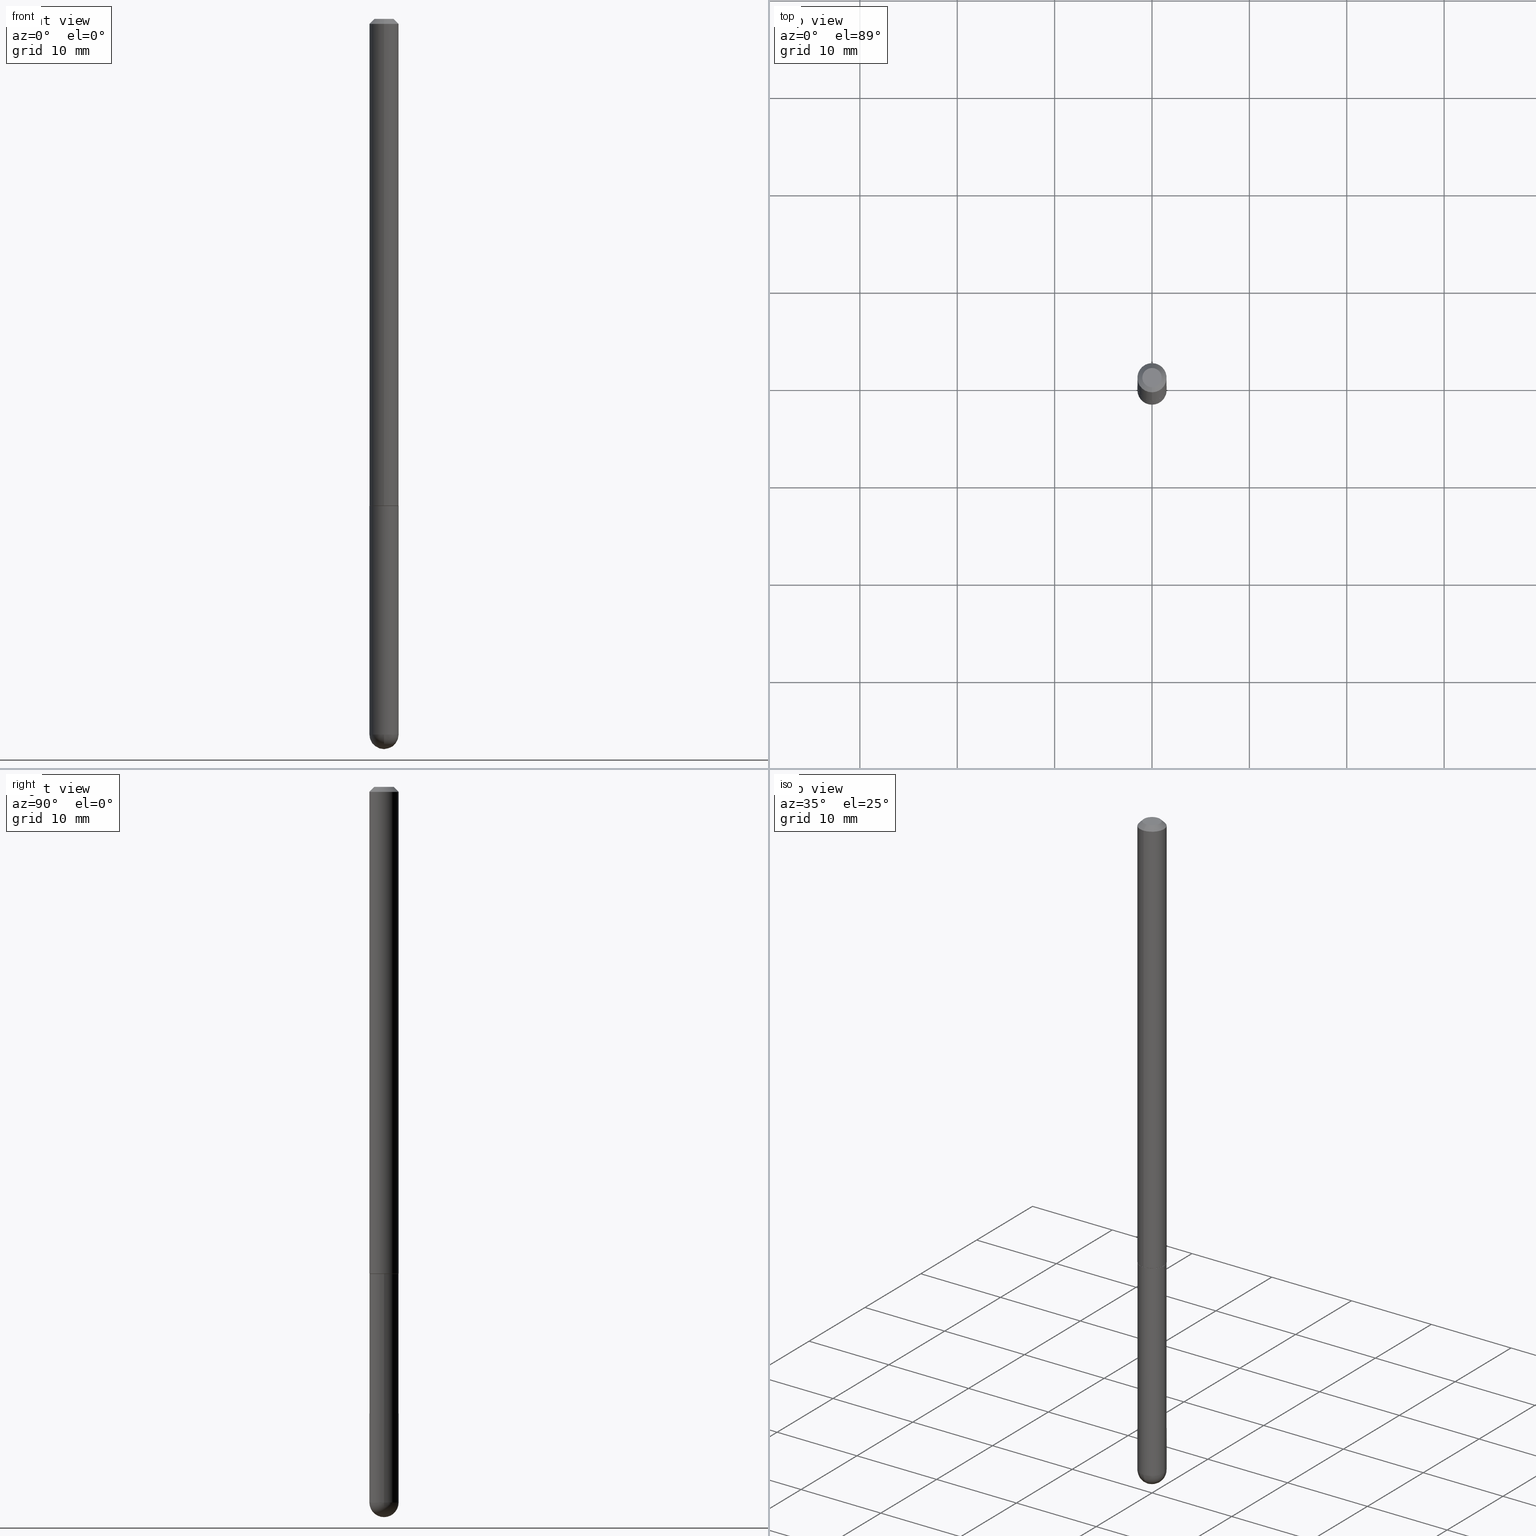
[diagram: canonical four-view strip — front | top / right | iso, engineering-drawing reading convention]
A machine part, canonical four-view strip (front | top / right | iso — engineering-drawing reading convention). The complete STEP part file that produces these views, byte-faithful:
ISO-10303-21;
HEADER;
FILE_DESCRIPTION (( 'STEP AP203' ),
    '1' );
FILE_NAME ('49557.STEP',
    '2024-04-10T12:23:21',
    ( '' ),
    ( '' ),
    'SwSTEP 2.0',
    'SolidWorks 2023',
    '' );
FILE_SCHEMA (( 'CONFIG_CONTROL_DESIGN' ));
ENDSEC;

DATA;
#1 = AXIS2_PLACEMENT_3D ( 'NONE', #47, #52, #175 ) ;
#2 = CARTESIAN_POINT ( 'NONE',  ( -0.05905000000000001914, 4.195754854663392958E-16, -2.904631170795522943E-30 ) ) ;
#3 = COORDINATED_UNIVERSAL_TIME_OFFSET ( 5, 0, .BEHIND. ) ;
#4 = DIRECTION ( 'NONE',  ( 1.000000000000000000, -6.982962677686265922E-15, 4.883557194083112340E-29 ) ) ;
#5 = CALENDAR_DATE ( 2024, 10, 4 ) ;
#6 = VERTEX_POINT ( 'NONE', #395 ) ;
#7 = DIRECTION ( 'NONE',  ( -6.982962677686265922E-15, -1.000000000000000000, 3.481260124123203259E-15 ) ) ;
#8 = ADVANCED_FACE ( 'NONE', ( #205 ), #264, .T. ) ;
#9 = EDGE_CURVE ( 'NONE', #341, #406, #200, .T. ) ;
#10 = DIRECTION ( 'NONE',  ( 1.000000000000000000, -6.982962677686266711E-15, 4.876176775795935793E-29 ) ) ;
#11 = AXIS2_PLACEMENT_3D ( 'NONE', #277, #128, #358 ) ;
#12 = VECTOR ( 'NONE', #71, 39.37007874015748143 ) ;
#13 = DIRECTION ( 'NONE',  ( -6.982962677686265922E-15, -1.000000000000000000, 3.481260124123203259E-15 ) ) ;
#14 = DIRECTION ( 'NONE',  ( -2.445468806185136597E-29, 3.491481338843145583E-15, 1.000000000000000000 ) ) ;
#15 = ORIENTED_EDGE ( 'NONE', *, *, #44, .F. ) ;
#16 = ORIENTED_EDGE ( 'NONE', *, *, #69, .F. ) ;
#17 = VECTOR ( 'NONE', #145, 39.37007874015748143 ) ;
#18 = DIRECTION ( 'NONE',  ( 6.982962677686265922E-15, 1.000000000000000000, -3.469747663417776213E-15 ) ) ;
#19 = PRODUCT_DEFINITION_SHAPE ( 'NONE', 'NONE',  #273 ) ;
#20 = DIRECTION ( 'NONE',  ( -2.452606242276133797E-29, 3.481260124123203654E-15, 1.000000000000000000 ) ) ;
#21 = EDGE_CURVE ( 'NONE', #76, #172, #209, .T. ) ;
#22 = DIRECTION ( 'NONE',  ( -2.452606242276133797E-29, 3.481260124123203654E-15, 1.000000000000000000 ) ) ;
#23 = DIRECTION ( 'NONE',  ( -6.982962677686265922E-15, -1.000000000000000000, 4.706025828879006993E-15 ) ) ;
#24 = ORIENTED_EDGE ( 'NONE', *, *, #261, .T. ) ;
#25 = CARTESIAN_POINT ( 'NONE',  ( -4.051124067684085231E-16, -0.05905000000000008159, -0.01999999999999986511 ) ) ;
#26 = AXIS2_PLACEMENT_3D ( 'NONE', #280, #121, #72 ) ;
#27 = LINE ( 'NONE', #374, #154 ) ;
#28 = ORIENTED_EDGE ( 'NONE', *, *, #402, .T. ) ;
#29 = DIRECTION ( 'NONE',  ( -2.452606242276133797E-29, 3.481260124123203654E-15, 1.000000000000000000 ) ) ;
#30 = VERTEX_POINT ( 'NONE', #35 ) ;
#31 = VERTEX_POINT ( 'NONE', #281 ) ;
#32 = APPROVAL_STATUS ( 'not_yet_approved' ) ;
#33 = APPROVAL_ROLE ( '' ) ;
#34 = CIRCLE ( 'NONE', #327, 0.03905000000000070914 ) ;
#35 = CARTESIAN_POINT ( 'NONE',  ( -0.05905000000000001914, -8.068652084428701697E-15, -1.968499999999999694 ) ) ;
#36 = EDGE_CURVE ( 'NONE', #172, #76, #364, .T. ) ;
#37 = ADVANCED_FACE ( 'NONE', ( #92 ), #215, .T. ) ;
#38 = ORIENTED_EDGE ( 'NONE', *, *, #9, .T. ) ;
#39 = LOCAL_TIME ( 8, 23, 21.00000000000000000, #192 ) ;
#40 = VECTOR ( 'NONE', #97, 39.37007874015748143 ) ;
#41 = CYLINDRICAL_SURFACE ( 'NONE', #237, 0.05905000000000001914 ) ;
#42 = DIRECTION ( 'NONE',  ( -6.982962677686265922E-15, -1.000000000000000000, 4.706025828879006993E-15 ) ) ;
#43 = CIRCLE ( 'NONE', #1, 0.05905000000000001914 ) ;
#44 = EDGE_CURVE ( 'NONE', #6, #235, #220, .T. ) ;
#45 = ORIENTED_EDGE ( 'NONE', *, *, #222, .F. ) ;
#46 = DESIGN_CONTEXT ( 'detailed design', #375, 'design' ) ;
#47 = CARTESIAN_POINT ( 'NONE',  ( 7.076575357898237682E-29, -1.010347412427735067E-14, -2.893749999999999822 ) ) ;
#48 = LENGTH_MEASURE_WITH_UNIT ( LENGTH_MEASURE( 0.02539999999999999897 ), #89 );
#49 = ORIENTED_EDGE ( 'NONE', *, *, #9, .F. ) ;
#50 = AXIS2_PLACEMENT_3D ( 'NONE', #168, #115, #96 ) ;
#51 = PERSON ( 'UNSPECIFIED', 'UNSPECIFIED', 'UNSPECIFIED', ('UNSPECIFIED'), ('UNSPECIFIED'), ('UNSPECIFIED') ) ;
#52 = DIRECTION ( 'NONE',  ( -2.445468806185136597E-29, 3.491481338843145583E-15, 1.000000000000000000 ) ) ;
#53 = ORIENTED_EDGE ( 'NONE', *, *, #396, .F. ) ;
#54 = CYLINDRICAL_SURFACE ( 'NONE', #352, 0.05905000000000010935 ) ;
#55 = ORIENTED_EDGE ( 'NONE', *, *, #362, .F. ) ;
#56 = VERTEX_POINT ( 'NONE', #151 ) ;
#57 = CC_DESIGN_PERSON_AND_ORGANIZATION_ASSIGNMENT ( #329, #120, ( #273 ) ) ;
#58 = DIRECTION ( 'NONE',  ( -1.000000000000000000, 6.982962677686265922E-15, -4.876176775795935793E-29 ) ) ;
#59 = AXIS2_PLACEMENT_3D ( 'NONE', #157, #148, #293 ) ;
#60 = AXIS2_PLACEMENT_3D ( 'NONE', #90, #213, #141 ) ;
#61 = CARTESIAN_POINT ( 'NONE',  ( 0.000000000000000000, 0.000000000000000000, 0.000000000000000000 ) ) ;
#62 = CARTESIAN_POINT ( 'NONE',  ( -4.123439461173747722E-16, -0.05905000000000010935, 2.055684103294755676E-16 ) ) ;
#63 = ADVANCED_FACE ( 'NONE', ( #284 ), #160, .T. ) ;
#64 = DIRECTION ( 'NONE',  ( -6.982962677686265922E-15, -1.000000000000000000, 4.706025828879006993E-15 ) ) ;
#65 = DIRECTION ( 'NONE',  ( -2.445468806185136597E-29, 3.491481338843145583E-15, 1.000000000000000000 ) ) ;
#66 = CIRCLE ( 'NONE', #59, 0.05905000000000001914 ) ;
#67 = EDGE_LOOP ( 'NONE', ( #208, #181, #270, #79 ) ) ;
#68 = AXIS2_PLACEMENT_3D ( 'NONE', #166, #367, #303 ) ;
#69 = EDGE_CURVE ( 'NONE', #251, #206, #43, .T. ) ;
#70 = ADVANCED_FACE ( 'NONE', ( #296 ), #390, .T. ) ;
#71 = DIRECTION ( 'NONE',  ( 4.937700262164540154E-15, 0.7071067811865440200, -0.7071067811865511255 ) ) ;
#72 = DIRECTION ( 'NONE',  ( 6.982962677686265922E-15, 1.000000000000000000, 0.000000000000000000 ) ) ;
#73 = EDGE_CURVE ( 'NONE', #106, #201, #258, .T. ) ;
#74 = ORIENTED_EDGE ( 'NONE', *, *, #127, .T. ) ;
#75 = DIRECTION ( 'NONE',  ( 1.000000000000000000, -6.982962677686270655E-15, 0.000000000000000000 ) ) ;
#76 = VERTEX_POINT ( 'NONE', #123 ) ;
#77 = FACE_OUTER_BOUND ( 'NONE', #140, .T. ) ;
#78 = MECHANICAL_CONTEXT ( 'NONE', #386, 'mechanical' ) ;
#79 = ORIENTED_EDGE ( 'NONE', *, *, #376, .F. ) ;
#80 = ORIENTED_EDGE ( 'NONE', *, *, #333, .T. ) ;
#81 = CARTESIAN_POINT ( 'NONE',  ( 4.195754854663398874E-16, 0.05905000000000010935, -2.055684103294755676E-16 ) ) ;
#82 = CONICAL_SURFACE ( 'NONE', #330, 0.05804999999999999744, 0.7853981633975165577 ) ;
#83 =( CONVERSION_BASED_UNIT ( 'INCH', #48 ) LENGTH_UNIT ( ) NAMED_UNIT ( #147 ) );
#84 = ORIENTED_EDGE ( 'NONE', *, *, #262, .F. ) ;
#85 = CARTESIAN_POINT ( 'NONE',  ( 4.123439461174440441E-16, 0.05904999999998979815, -2.893749999999999822 ) ) ;
#86 = DIRECTION ( 'NONE',  ( -2.445468806185136597E-29, 3.491481338843145583E-15, 1.000000000000000000 ) ) ;
#87 = CARTESIAN_POINT ( 'NONE',  ( 4.124700581087863588E-16, 0.05804999999999314181, -1.968500000000000139 ) ) ;
#88 = CARTESIAN_POINT ( 'NONE',  ( -4.051124067684085231E-16, -0.05905000000000008159, -0.01999999999999986511 ) ) ;
#89 =( LENGTH_UNIT ( ) NAMED_UNIT ( * ) SI_UNIT ( $, .METRE. ) );
#90 = CARTESIAN_POINT ( 'NONE',  ( 4.827955387920569283E-29, -6.852860554336525173E-15, -1.968499999999999694 ) ) ;
#91 = APPROVAL_ROLE ( '' ) ;
#92 = FACE_OUTER_BOUND ( 'NONE', #67, .T. ) ;
#93 = ORIENTED_EDGE ( 'NONE', *, *, #402, .F. ) ;
#94 = SHAPE_DEFINITION_REPRESENTATION ( #19, #332 ) ;
#95 = CARTESIAN_POINT ( 'NONE',  ( 6.745455579984352556E-29, -1.057765649241740097E-14, -2.893749999999999822 ) ) ;
#96 = DIRECTION ( 'NONE',  ( 1.000000000000000000, -6.982962677686266711E-15, 4.876176775795935793E-29 ) ) ;
#97 = DIRECTION ( 'NONE',  ( -2.445468806185136877E-29, 3.491481338843145188E-15, 1.000000000000000000 ) ) ;
#98 = PERSON_AND_ORGANIZATION_ROLE ( 'classification_officer' ) ;
#99 = ADVANCED_FACE ( 'NONE', ( #310 ), #109, .T. ) ;
#100 = EDGE_LOOP ( 'NONE', ( #348, #74, #314, #112 ) ) ;
#101 = DATE_AND_TIME ( #385, #139 ) ;
#102 = AXIS2_PLACEMENT_3D ( 'NONE', #95, #4, #292 ) ;
#103 = VECTOR ( 'NONE', #347, 39.37007874015748143 ) ;
#104 = ORIENTED_EDGE ( 'NONE', *, *, #69, .T. ) ;
#105 = AXIS2_PLACEMENT_3D ( 'NONE', #350, #240, #58 ) ;
#106 = VERTEX_POINT ( 'NONE', #272 ) ;
#107 = EDGE_LOOP ( 'NONE', ( #365, #38, #342, #15 ) ) ;
#108 = CARTESIAN_POINT ( 'NONE',  ( 3.425143193405141365E-16, 0.03905000000000070914, -8.321098821681942048E-16 ) ) ;
#109 = SPHERICAL_SURFACE ( 'NONE', #184, 0.05905000000000025506 ) ;
#110 = CARTESIAN_POINT ( 'NONE',  ( 4.905212484552284025E-31, -6.962520248246431022E-17, -0.02000000000000006981 ) ) ;
#111 = VECTOR ( 'NONE', #315, 39.37007874015748854 ) ;
#112 = ORIENTED_EDGE ( 'NONE', *, *, #261, .F. ) ;
#113 = DIRECTION ( 'NONE',  ( -2.445468806185136597E-29, 3.491481338843145583E-15, 1.000000000000000000 ) ) ;
#114 = ORIENTED_EDGE ( 'NONE', *, *, #396, .T. ) ;
#115 = DIRECTION ( 'NONE',  ( -2.445468806185136597E-29, 3.491481338843145583E-15, 1.000000000000000000 ) ) ;
#116 = CARTESIAN_POINT ( 'NONE',  ( 4.905212484552284025E-31, -6.962520248246431022E-17, -0.02000000000000006981 ) ) ;
#117 = APPROVAL_DATE_TIME ( #152, #295 ) ;
#118 = CALENDAR_DATE ( 2024, 10, 4 ) ;
#119 = DIRECTION ( 'NONE',  ( 2.452606242276133797E-29, -3.481260124123203654E-15, -1.000000000000000000 ) ) ;
#120 = PERSON_AND_ORGANIZATION_ROLE ( 'creator' ) ;
#121 = DIRECTION ( 'NONE',  ( -1.000000000000000000, 6.982962677686265922E-15, -4.883557194083112340E-29 ) ) ;
#122 = CARTESIAN_POINT ( 'NONE',  ( -4.123439461173271448E-16, -0.05905000000000704824, -1.967499999999999361 ) ) ;
#123 = CARTESIAN_POINT ( 'NONE',  ( 4.160227717875875531E-16, 0.05804999999999314181, -1.968500000000000139 ) ) ;
#124 = CARTESIAN_POINT ( 'NONE',  ( -4.195754854662709114E-16, -0.05905000000001047605, -2.893749999999999822 ) ) ;
#125 = EDGE_CURVE ( 'NONE', #31, #305, #276, .T. ) ;
#126 = DIRECTION ( 'NONE',  ( 1.000000000000000000, 0.000000000000000000, 0.000000000000000000 ) ) ;
#127 = EDGE_CURVE ( 'NONE', #106, #235, #198, .T. ) ;
#128 = DIRECTION ( 'NONE',  ( -1.000000000000000000, 7.105427357601001070E-15, -4.926315508542082329E-29 ) ) ;
#129 = ORIENTED_EDGE ( 'NONE', *, *, #249, .F. ) ;
#130 = APPLICATION_PROTOCOL_DEFINITION ( 'international standard', 'config_control_design', 1994, #386 ) ;
#131 = AXIS2_PLACEMENT_3D ( 'NONE', #311, #86, #407 ) ;
#132 = EDGE_LOOP ( 'NONE', ( #309, #137, #84, #304 ) ) ;
#133 = CIRCLE ( 'NONE', #380, 0.05905000000000001914 ) ;
#134 = PERSON_AND_ORGANIZATION ( #51, #199 ) ;
#135 = CARTESIAN_POINT ( 'NONE',  ( 4.825502781678292621E-29, -6.849379294212400691E-15, -1.967499999999999805 ) ) ;
#136 = CC_DESIGN_PERSON_AND_ORGANIZATION_ASSIGNMENT ( #243, #186, ( #343 ) ) ;
#137 = ORIENTED_EDGE ( 'NONE', *, *, #249, .T. ) ;
#138 = DIRECTION ( 'NONE',  ( 1.000000000000000000, -6.982962677686270655E-15, 0.000000000000000000 ) ) ;
#139 = LOCAL_TIME ( 8, 23, 21.00000000000000000, #3 ) ;
#140 = EDGE_LOOP ( 'NONE', ( #233, #149 ) ) ;
#141 = DIRECTION ( 'NONE',  ( -6.982962677686265922E-15, -1.000000000000000000, 3.481260124123204048E-15 ) ) ;
#142 = AXIS2_PLACEMENT_3D ( 'NONE', #328, #226, #389 ) ;
#143 = ADVANCED_FACE ( 'NONE', ( #253 ), #377, .F. ) ;
#144 = PLANE ( 'NONE',  #105 ) ;
#145 = DIRECTION ( 'NONE',  ( 5.024295867788404755E-15, 0.7071067811865981989, 0.7071067811864968355 ) ) ;
#146 = CC_DESIGN_PERSON_AND_ORGANIZATION_ASSIGNMENT ( #134, #259, ( #321 ) ) ;
#147 = DIMENSIONAL_EXPONENTS ( 1.000000000000000000, 0.000000000000000000, 0.000000000000000000, 0.000000000000000000, 0.000000000000000000, 0.000000000000000000, 0.000000000000000000 ) ;
#148 = DIRECTION ( 'NONE',  ( -2.445468806185136597E-29, 3.491481338843145583E-15, 1.000000000000000000 ) ) ;
#149 = ORIENTED_EDGE ( 'NONE', *, *, #73, .T. ) ;
#150 = LINE ( 'NONE', #87, #17 ) ;
#151 = CARTESIAN_POINT ( 'NONE',  ( 0.05905000000000001914, -7.285324961630105839E-15, -1.968499999999999694 ) ) ;
#152 = DATE_AND_TIME ( #219, #335 ) ;
#153 = SECURITY_CLASSIFICATION ( '', '', #255 ) ;
#154 = VECTOR ( 'NONE', #282, 39.37007874015748143 ) ;
#155 = ORIENTED_EDGE ( 'NONE', *, *, #254, .F. ) ;
#156 = FACE_OUTER_BOUND ( 'NONE', #410, .T. ) ;
#157 = CARTESIAN_POINT ( 'NONE',  ( 7.076575357898237682E-29, -1.010347412427735067E-14, -2.893749999999999822 ) ) ;
#158 = DATE_TIME_ROLE ( 'creation_date' ) ;
#159 = CIRCLE ( 'NONE', #131, 0.05905000000000001914 ) ;
#160 = CONICAL_SURFACE ( 'NONE', #359, 0.05905000000000001914, 0.7853981633974467247 ) ;
#161 = CARTESIAN_POINT ( 'NONE',  ( 0.000000000000000000, 0.000000000000000000, 0.000000000000000000 ) ) ;
#162 = DIRECTION ( 'NONE',  ( 0.000000000000000000, 0.000000000000000000, 1.000000000000000000 ) ) ;
#163 = ADVANCED_FACE ( 'NONE', ( #271 ), #144, .F. ) ;
#164 = LOCAL_TIME ( 8, 23, 21.00000000000000000, #357 ) ;
#165 = AXIS2_PLACEMENT_3D ( 'NONE', #242, #288, #64 ) ;
#166 = CARTESIAN_POINT ( 'NONE',  ( 2.726846925636536486E-16, 0.03905000000000070914, -4.840265450076038589E-16 ) ) ;
#167 = EDGE_LOOP ( 'NONE', ( #178, #80 ) ) ;
#168 = CARTESIAN_POINT ( 'NONE',  ( 0.000000000000000000, 0.000000000000000000, 0.000000000000000000 ) ) ;
#169 = EDGE_LOOP ( 'NONE', ( #241, #265, #191, #93 ) ) ;
#170 = AXIS2_PLACEMENT_3D ( 'NONE', #269, #162, #126 ) ;
#171 = EDGE_CURVE ( 'NONE', #172, #406, #345, .T. ) ;
#172 = VERTEX_POINT ( 'NONE', #317 ) ;
#173 = AXIS2_PLACEMENT_3D ( 'NONE', #116, #245, #187 ) ;
#174 = APPROVAL_STATUS ( 'not_yet_approved' ) ;
#175 = DIRECTION ( 'NONE',  ( 1.000000000000000000, -6.982962677686270655E-15, 0.000000000000000000 ) ) ;
#176 = CARTESIAN_POINT ( 'NONE',  ( 0.000000000000000000, 0.000000000000000000, 0.000000000000000000 ) ) ;
#177 = DIRECTION ( 'NONE',  ( -2.452606242276134078E-29, 3.481260124123204048E-15, 1.000000000000000000 ) ) ;
#178 = ORIENTED_EDGE ( 'NONE', *, *, #254, .T. ) ;
#179 = CARTESIAN_POINT ( 'NONE',  ( 4.827955387920569283E-29, -6.852860554336525173E-15, -1.968499999999999694 ) ) ;
#180 = DIRECTION ( 'NONE',  ( -1.000000000000000000, 6.982962677686265922E-15, -4.883557194083112340E-29 ) ) ;
#181 = ORIENTED_EDGE ( 'NONE', *, *, #387, .T. ) ;
#182 = EDGE_CURVE ( 'NONE', #356, #305, #196, .T. ) ;
#183 = CARTESIAN_POINT ( 'NONE',  ( -4.053609834396394049E-16, -0.05805000000000685306, -1.968499999999999472 ) ) ;
#184 = AXIS2_PLACEMENT_3D ( 'NONE', #238, #180, #313 ) ;
#185 = DIRECTION ( 'NONE',  ( -2.452606242276133797E-29, 3.481260124123203654E-15, 1.000000000000000000 ) ) ;
#186 = PERSON_AND_ORGANIZATION_ROLE ( 'design_supplier' ) ;
#187 = DIRECTION ( 'NONE',  ( -6.982962677686265922E-15, -1.000000000000000000, 3.469747663417776213E-15 ) ) ;
#188 = PRODUCT_RELATED_PRODUCT_CATEGORY ( 'detail', '', ( #321 ) ) ;
#189 = CALENDAR_DATE ( 2024, 10, 4 ) ;
#190 = AXIS2_PLACEMENT_3D ( 'NONE', #236, #373, #18 ) ;
#191 = ORIENTED_EDGE ( 'NONE', *, *, #182, .F. ) ;
#192 = COORDINATED_UNIVERSAL_TIME_OFFSET ( 5, 0, .BEHIND. ) ;
#193 = EDGE_CURVE ( 'NONE', #251, #56, #27, .T. ) ;
#194 = ADVANCED_FACE ( 'NONE', ( #408 ), #54, .T. ) ;
#195 = APPROVAL_PERSON_ORGANIZATION ( #363, #300, #91 ) ;
#196 = CIRCLE ( 'NONE', #217, 0.05905000000000001914 ) ;
#197 = DIRECTION ( 'NONE',  ( -2.452606242276133797E-29, 3.481260124123203654E-15, 1.000000000000000000 ) ) ;
#198 = LINE ( 'NONE', #88, #111 ) ;
#199 = ORGANIZATION ( 'UNSPECIFIED', 'UNSPECIFIED', '' ) ;
#200 = CIRCLE ( 'NONE', #372, 0.05905000000000020649 ) ;
#201 = VERTEX_POINT ( 'NONE', #108 ) ;
#202 = FACE_OUTER_BOUND ( 'NONE', #326, .T. ) ;
#203 = ORIENTED_EDGE ( 'NONE', *, *, #182, .T. ) ;
#204 = CARTESIAN_POINT ( 'NONE',  ( 4.813905344975440714E-29, -6.872981015512730918E-15, -1.968499999999999694 ) ) ;
#205 = FACE_OUTER_BOUND ( 'NONE', #100, .T. ) ;
#206 = VERTEX_POINT ( 'NONE', #85 ) ;
#207 = AXIS2_PLACEMENT_3D ( 'NONE', #204, #14, #75 ) ;
#208 = ORIENTED_EDGE ( 'NONE', *, *, #262, .T. ) ;
#209 = CIRCLE ( 'NONE', #403, 0.05804999999999999744 ) ;
#210 = ADVANCED_FACE ( 'NONE', ( #212 ), #82, .T. ) ;
#211 = ORIENTED_EDGE ( 'NONE', *, *, #171, .T. ) ;
#212 = FACE_OUTER_BOUND ( 'NONE', #346, .T. ) ;
#213 = DIRECTION ( 'NONE',  ( -2.452606242276133237E-29, 3.481260124123204048E-15, 1.000000000000000000 ) ) ;
#214 = CC_DESIGN_PERSON_AND_ORGANIZATION_ASSIGNMENT ( #286, #98, ( #153 ) ) ;
#215 = CYLINDRICAL_SURFACE ( 'NONE', #394, 0.05905000000000010935 ) ;
#216 = EDGE_LOOP ( 'NONE', ( #325, #239, #16, #53 ) ) ;
#217 = AXIS2_PLACEMENT_3D ( 'NONE', #405, #113, #138 ) ;
#218 = CC_DESIGN_DATE_AND_TIME_ASSIGNMENT ( #248, #158, ( #273 ) ) ;
#219 = CALENDAR_DATE ( 2024, 10, 4 ) ;
#220 = CIRCLE ( 'NONE', #173, 0.05905000000000001914 ) ;
#221 = ORIENTED_EDGE ( 'NONE', *, *, #127, .F. ) ;
#222 = EDGE_CURVE ( 'NONE', #356, #30, #275, .T. ) ;
#223 = APPROVAL_DATE_TIME ( #101, #257 ) ;
#224 = CARTESIAN_POINT ( 'NONE',  ( 4.123439461173745750E-16, 0.05904999999999994975, -0.02000000000000027450 ) ) ;
#225 = VECTOR ( 'NONE', #369, 39.37007874015748143 ) ;
#226 = DIRECTION ( 'NONE',  ( -2.452606242276133797E-29, 3.481260124123203654E-15, 1.000000000000000000 ) ) ;
#227 = CARTESIAN_POINT ( 'NONE',  ( -0.05905000000000001914, -8.068652084428701697E-15, -2.893749999999999822 ) ) ;
#228 = CC_DESIGN_APPROVAL ( #257, ( #153 ) ) ;
#229 = EDGE_CURVE ( 'NONE', #235, #6, #133, .T. ) ;
#230 = ORIENTED_EDGE ( 'NONE', *, *, #21, .F. ) ;
#231 =( NAMED_UNIT ( * ) PLANE_ANGLE_UNIT ( ) SI_UNIT ( $, .RADIAN. ) );
#232 = CARTESIAN_POINT ( 'NONE',  ( 4.827955387920569283E-29, -6.852860554336525173E-15, -1.968499999999999694 ) ) ;
#233 = ORIENTED_EDGE ( 'NONE', *, *, #362, .T. ) ;
#234 = PLANE ( 'NONE',  #68 ) ;
#235 = VERTEX_POINT ( 'NONE', #25 ) ;
#236 = CARTESIAN_POINT ( 'NONE',  ( 4.905212484552284025E-31, -6.962520248246431022E-17, -0.02000000000000006981 ) ) ;
#237 = AXIS2_PLACEMENT_3D ( 'NONE', #161, #299, #10 ) ;
#238 = CARTESIAN_POINT ( 'NONE',  ( 6.745455579984352556E-29, -1.057765649241740097E-14, -2.893749999999999822 ) ) ;
#239 = ORIENTED_EDGE ( 'NONE', *, *, #351, .T. ) ;
#240 = DIRECTION ( 'NONE',  ( 2.438088387897960049E-29, -3.491481338843145188E-15, -1.000000000000000000 ) ) ;
#241 = ORIENTED_EDGE ( 'NONE', *, *, #351, .F. ) ;
#242 = CARTESIAN_POINT ( 'NONE',  ( 4.827955387920569283E-29, -6.852860554336525173E-15, -1.968499999999999694 ) ) ;
#243 = PERSON_AND_ORGANIZATION ( #51, #199 ) ;
#244 = CARTESIAN_POINT ( 'NONE',  ( 4.195754854663646379E-16, 0.05904999999999335780, -1.967500000000000027 ) ) ;
#245 = DIRECTION ( 'NONE',  ( -2.452606242276133797E-29, 3.481260124123203654E-15, 1.000000000000000000 ) ) ;
#246 = PERSON_AND_ORGANIZATION ( #51, #199 ) ;
#247 = CIRCLE ( 'NONE', #142, 0.05905000000000020649 ) ;
#248 = DATE_AND_TIME ( #118, #39 ) ;
#249 = EDGE_CURVE ( 'NONE', #76, #341, #150, .T. ) ;
#250 = COORDINATED_UNIVERSAL_TIME_OFFSET ( 5, 0, .BEHIND. ) ;
#251 = VERTEX_POINT ( 'NONE', #354 ) ;
#252 = DIRECTION ( 'NONE',  ( -6.982962677686265922E-15, -1.000000000000000000, 3.481260124123203654E-15 ) ) ;
#253 = FACE_OUTER_BOUND ( 'NONE', #404, .T. ) ;
#254 = EDGE_CURVE ( 'NONE', #56, #30, #337, .T. ) ;
#255 = SECURITY_CLASSIFICATION_LEVEL ( 'unclassified' ) ;
#256 =( GEOMETRIC_REPRESENTATION_CONTEXT ( 3 ) GLOBAL_UNCERTAINTY_ASSIGNED_CONTEXT ( ( #370 ) ) GLOBAL_UNIT_ASSIGNED_CONTEXT ( ( #83, #231, #340 ) ) REPRESENTATION_CONTEXT ( 'NONE', 'WORKASPACE' ) );
#257 = APPROVAL ( #32, 'UNSPECIFIED' ) ;
#258 = CIRCLE ( 'NONE', #285, 0.03905000000000070914 ) ;
#259 = PERSON_AND_ORGANIZATION_ROLE ( 'design_owner' ) ;
#260 = LINE ( 'NONE', #62, #225 ) ;
#261 = EDGE_CURVE ( 'NONE', #201, #6, #279, .T. ) ;
#262 = EDGE_CURVE ( 'NONE', #406, #341, #247, .T. ) ;
#263 = APPROVAL_PERSON_ORGANIZATION ( #287, #295, #33 ) ;
#264 = CONICAL_SURFACE ( 'NONE', #190, 0.05905000000000001914, 0.7853981633974467247 ) ;
#265 = ORIENTED_EDGE ( 'NONE', *, *, #125, .T. ) ;
#266 = ORIENTED_EDGE ( 'NONE', *, *, #36, .F. ) ;
#267 = DIRECTION ( 'NONE',  ( -2.452606242276133797E-29, 3.481260124123203654E-15, 1.000000000000000000 ) ) ;
#268 = MANIFOLD_SOLID_BREP ( 'Body-Move/Copy2[1]', #298 ) ;
#269 = CARTESIAN_POINT ( 'NONE',  ( 0.000000000000000000, 0.000000000000000000, 0.000000000000000000 ) ) ;
#270 = ORIENTED_EDGE ( 'NONE', *, *, #229, .F. ) ;
#271 = FACE_OUTER_BOUND ( 'NONE', #167, .T. ) ;
#272 = CARTESIAN_POINT ( 'NONE',  ( -3.365074267906958048E-16, -0.03905000000000070914, -5.602234664741670801E-16 ) ) ;
#273 = PRODUCT_DEFINITION ( 'UNKNOWN', '', #343, #46 ) ;
#274 = DIRECTION ( 'NONE',  ( -6.982962677686265922E-15, -1.000000000000000000, 4.706025828879006993E-15 ) ) ;
#275 = LINE ( 'NONE', #2, #40 ) ;
#276 = CIRCLE ( 'NONE', #11, 0.05905000000000025506 ) ;
#277 = CARTESIAN_POINT ( 'NONE',  ( 6.745455579984352556E-29, -1.057765649241740097E-14, -2.893749999999999822 ) ) ;
#278 = ORIENTED_EDGE ( 'NONE', *, *, #222, .T. ) ;
#279 = LINE ( 'NONE', #224, #12 ) ;
#280 = CARTESIAN_POINT ( 'NONE',  ( 6.745455579984352556E-29, -1.057765649241740097E-14, -2.893749999999999822 ) ) ;
#281 = CARTESIAN_POINT ( 'NONE',  ( 6.892385391458386628E-29, -1.078021269580160693E-14, -2.952799999999999869 ) ) ;
#282 = DIRECTION ( 'NONE',  ( -2.445468806185136877E-29, 3.491481338843145188E-15, 1.000000000000000000 ) ) ;
#283 = CC_DESIGN_APPROVAL ( #300, ( #273 ) ) ;
#284 = FACE_OUTER_BOUND ( 'NONE', #366, .T. ) ;
#285 = AXIS2_PLACEMENT_3D ( 'NONE', #388, #197, #7 ) ;
#286 = PERSON_AND_ORGANIZATION ( #51, #199 ) ;
#287 = PERSON_AND_ORGANIZATION ( #51, #199 ) ;
#288 = DIRECTION ( 'NONE',  ( -2.452606242276133797E-29, 3.481260124123203654E-15, 1.000000000000000000 ) ) ;
#289 = APPROVAL_DATE_TIME ( #297, #300 ) ;
#290 = ADVANCED_FACE ( 'NONE', ( #156 ), #41, .T. ) ;
#291 = MANIFOLD_SOLID_BREP ( 'Body-Move/Copy2[2]', #307 ) ;
#292 = DIRECTION ( 'NONE',  ( 6.982962677686266711E-15, 1.000000000000000000, 0.000000000000000000 ) ) ;
#293 = DIRECTION ( 'NONE',  ( 1.000000000000000000, -6.982962677686270655E-15, 0.000000000000000000 ) ) ;
#294 = DATE_AND_TIME ( #5, #401 ) ;
#295 = APPROVAL ( #382, 'UNSPECIFIED' ) ;
#296 = FACE_OUTER_BOUND ( 'NONE', #216, .T. ) ;
#297 = DATE_AND_TIME ( #189, #164 ) ;
#298 = CLOSED_SHELL ( 'NONE', ( #290, #99, #70, #163, #336 ) ) ;
#299 = DIRECTION ( 'NONE',  ( -2.445468806185136597E-29, 3.491481338843145583E-15, 1.000000000000000000 ) ) ;
#300 = APPROVAL ( #174, 'UNSPECIFIED' ) ;
#301 = CONICAL_SURFACE ( 'NONE', #355, 0.05804999999999999744, 0.7853981633975165577 ) ;
#302 = DIRECTION ( 'NONE',  ( -2.452606242276133797E-29, 3.481260124123203654E-15, 1.000000000000000000 ) ) ;
#303 = DIRECTION ( 'NONE',  ( 6.982962677686265922E-15, 1.000000000000000000, -3.481260124123204048E-15 ) ) ;
#304 = ORIENTED_EDGE ( 'NONE', *, *, #171, .F. ) ;
#305 = VERTEX_POINT ( 'NONE', #124 ) ;
#306 = LINE ( 'NONE', #81, #393 ) ;
#307 = CLOSED_SHELL ( 'NONE', ( #319, #37, #8, #63, #194, #210, #143, #331 ) ) ;
#308 = ORIENTED_EDGE ( 'NONE', *, *, #193, .F. ) ;
#309 = ORIENTED_EDGE ( 'NONE', *, *, #36, .T. ) ;
#310 = FACE_OUTER_BOUND ( 'NONE', #169, .T. ) ;
#311 = CARTESIAN_POINT ( 'NONE',  ( 7.076575357898237682E-29, -1.010347412427735067E-14, -2.893749999999999822 ) ) ;
#312 = DIRECTION ( 'NONE',  ( -2.452606242276133797E-29, 3.481260124123203654E-15, 1.000000000000000000 ) ) ;
#313 = DIRECTION ( 'NONE',  ( 6.982962677686265922E-15, 1.000000000000000000, 0.000000000000000000 ) ) ;
#314 = ORIENTED_EDGE ( 'NONE', *, *, #229, .T. ) ;
#315 = DIRECTION ( 'NONE',  ( -4.851104656540955597E-15, -0.7071067811865487940, -0.7071067811865461294 ) ) ;
#316 = CC_DESIGN_SECURITY_CLASSIFICATION ( #153, ( #343 ) ) ;
#317 = CARTESIAN_POINT ( 'NONE',  ( -4.053609834396394049E-16, -0.05805000000000685306, -1.968499999999999472 ) ) ;
#318 = COORDINATED_UNIVERSAL_TIME_OFFSET ( 5, 0, .BEHIND. ) ;
#319 = ADVANCED_FACE ( 'NONE', ( #334 ), #301, .T. ) ;
#320 = DIRECTION ( 'NONE',  ( -6.982962677686265922E-15, -1.000000000000000000, 3.469747663417776213E-15 ) ) ;
#321 = PRODUCT ( '49557', '49557', '', ( #78 ) ) ;
#322 = CC_DESIGN_DATE_AND_TIME_ASSIGNMENT ( #294, #384, ( #153 ) ) ;
#323 = CC_DESIGN_APPROVAL ( #295, ( #343 ) ) ;
#324 = AXIS2_PLACEMENT_3D ( 'NONE', #411, #65, #349 ) ;
#325 = ORIENTED_EDGE ( 'NONE', *, *, #125, .F. ) ;
#326 = EDGE_LOOP ( 'NONE', ( #45, #203, #114, #339, #409 ) ) ;
#327 = AXIS2_PLACEMENT_3D ( 'NONE', #361, #302, #13 ) ;
#328 = CARTESIAN_POINT ( 'NONE',  ( 4.825502781678292621E-29, -6.849379294212400691E-15, -1.967499999999999805 ) ) ;
#329 = PERSON_AND_ORGANIZATION ( #51, #199 ) ;
#330 = AXIS2_PLACEMENT_3D ( 'NONE', #179, #312, #23 ) ;
#331 = ADVANCED_FACE ( 'NONE', ( #77 ), #234, .F. ) ;
#332 = ADVANCED_BREP_SHAPE_REPRESENTATION ( '49557', ( #268, #291, #170 ), #256 ) ;
#333 = EDGE_CURVE ( 'NONE', #30, #56, #412, .T. ) ;
#334 = FACE_OUTER_BOUND ( 'NONE', #132, .T. ) ;
#335 = LOCAL_TIME ( 8, 23, 21.00000000000000000, #250 ) ;
#336 = ADVANCED_FACE ( 'NONE', ( #202 ), #338, .T. ) ;
#337 = CIRCLE ( 'NONE', #324, 0.05905000000000001914 ) ;
#338 = CYLINDRICAL_SURFACE ( 'NONE', #50, 0.05905000000000001914 ) ;
#339 = ORIENTED_EDGE ( 'NONE', *, *, #193, .T. ) ;
#340 =( NAMED_UNIT ( * ) SI_UNIT ( $, .STERADIAN. ) SOLID_ANGLE_UNIT ( ) );
#341 = VERTEX_POINT ( 'NONE', #244 ) ;
#342 = ORIENTED_EDGE ( 'NONE', *, *, #376, .T. ) ;
#343 = PRODUCT_DEFINITION_FORMATION_WITH_SPECIFIED_SOURCE ( 'ANY', '', #321, .NOT_KNOWN. ) ;
#344 = ORIENTED_EDGE ( 'NONE', *, *, #21, .T. ) ;
#345 = LINE ( 'NONE', #183, #103 ) ;
#346 = EDGE_LOOP ( 'NONE', ( #129, #344, #211, #49 ) ) ;
#347 = DIRECTION ( 'NONE',  ( -4.937700262164884886E-15, -0.7071067811865933139, 0.7071067811865017205 ) ) ;
#348 = ORIENTED_EDGE ( 'NONE', *, *, #73, .F. ) ;
#349 = DIRECTION ( 'NONE',  ( 1.000000000000000000, -6.982962677686270655E-15, 0.000000000000000000 ) ) ;
#350 = CARTESIAN_POINT ( 'NONE',  ( 4.123439461174222518E-16, 0.05904999999999314270, -1.968500000000000139 ) ) ;
#351 = EDGE_CURVE ( 'NONE', #31, #206, #371, .T. ) ;
#352 = AXIS2_PLACEMENT_3D ( 'NONE', #176, #20, #400 ) ;
#353 = CARTESIAN_POINT ( 'NONE',  ( 4.905212484552284025E-31, -6.962520248246431022E-17, -0.02000000000000006981 ) ) ;
#354 = CARTESIAN_POINT ( 'NONE',  ( 0.05905000000000001914, -8.900571516012416899E-15, -2.893749999999999822 ) ) ;
#355 = AXIS2_PLACEMENT_3D ( 'NONE', #232, #267, #42 ) ;
#356 = VERTEX_POINT ( 'NONE', #227 ) ;
#357 = COORDINATED_UNIVERSAL_TIME_OFFSET ( 5, 0, .BEHIND. ) ;
#358 = DIRECTION ( 'NONE',  ( -7.105427357601001070E-15, -1.000000000000000000, 0.000000000000000000 ) ) ;
#359 = AXIS2_PLACEMENT_3D ( 'NONE', #353, #119, #398 ) ;
#360 = CC_DESIGN_PERSON_AND_ORGANIZATION_ASSIGNMENT ( #246, #383, ( #343 ) ) ;
#361 = CARTESIAN_POINT ( 'NONE',  ( 1.707422731104744021E-44, -2.423537283057791000E-30, -6.961666743211805931E-16 ) ) ;
#362 = EDGE_CURVE ( 'NONE', #201, #106, #34, .T. ) ;
#363 = PERSON_AND_ORGANIZATION ( #51, #199 ) ;
#364 = CIRCLE ( 'NONE', #165, 0.05804999999999999744 ) ;
#365 = ORIENTED_EDGE ( 'NONE', *, *, #387, .F. ) ;
#366 = EDGE_LOOP ( 'NONE', ( #221, #55, #24, #392 ) ) ;
#367 = DIRECTION ( 'NONE',  ( 2.452606242276133237E-29, -3.481260124123204048E-15, -1.000000000000000000 ) ) ;
#368 = DIRECTION ( 'NONE',  ( -6.982962677686265922E-15, -1.000000000000000000, 4.626330217890353559E-15 ) ) ;
#369 = DIRECTION ( 'NONE',  ( -2.452606242276134078E-29, 3.481260124123204048E-15, 1.000000000000000000 ) ) ;
#370 = UNCERTAINTY_MEASURE_WITH_UNIT (LENGTH_MEASURE( 1.000000000000000082E-05 ), #83, 'distance_accuracy_value', 'NONE');
#371 = CIRCLE ( 'NONE', #102, 0.05905000000000025506 ) ;
#372 = AXIS2_PLACEMENT_3D ( 'NONE', #135, #397, #368 ) ;
#373 = DIRECTION ( 'NONE',  ( 2.452606242276133797E-29, -3.481260124123203654E-15, -1.000000000000000000 ) ) ;
#374 = CARTESIAN_POINT ( 'NONE',  ( 0.05905000000000001914, -4.123439461173741806E-16, 2.879382386107500921E-30 ) ) ;
#375 = APPLICATION_CONTEXT ( 'configuration controlled 3d designs of mechanical parts and assemblies' ) ;
#376 = EDGE_CURVE ( 'NONE', #406, #235, #260, .T. ) ;
#377 = PLANE ( 'NONE',  #60 ) ;
#378 = PERSON_AND_ORGANIZATION ( #51, #199 ) ;
#379 = APPROVAL_PERSON_ORGANIZATION ( #378, #257, #381 ) ;
#380 = AXIS2_PLACEMENT_3D ( 'NONE', #110, #185, #320 ) ;
#381 = APPROVAL_ROLE ( '' ) ;
#382 = APPROVAL_STATUS ( 'not_yet_approved' ) ;
#383 = PERSON_AND_ORGANIZATION_ROLE ( 'creator' ) ;
#384 = DATE_TIME_ROLE ( 'classification_date' ) ;
#385 = CALENDAR_DATE ( 2024, 10, 4 ) ;
#386 = APPLICATION_CONTEXT ( 'configuration controlled 3d designs of mechanical parts and assemblies' ) ;
#387 = EDGE_CURVE ( 'NONE', #341, #6, #306, .T. ) ;
#388 = CARTESIAN_POINT ( 'NONE',  ( 1.707422731104744021E-44, -2.423537283057791000E-30, -6.961666743211805931E-16 ) ) ;
#389 = DIRECTION ( 'NONE',  ( -6.982962677686265922E-15, -1.000000000000000000, 4.626330217890353559E-15 ) ) ;
#390 = SPHERICAL_SURFACE ( 'NONE', #26, 0.05905000000000025506 ) ;
#391 = APPLICATION_PROTOCOL_DEFINITION ( 'international standard', 'config_control_design', 1994, #375 ) ;
#392 = ORIENTED_EDGE ( 'NONE', *, *, #44, .T. ) ;
#393 = VECTOR ( 'NONE', #177, 39.37007874015748143 ) ;
#394 = AXIS2_PLACEMENT_3D ( 'NONE', #61, #29, #252 ) ;
#395 = CARTESIAN_POINT ( 'NONE',  ( 4.123439461173745750E-16, 0.05904999999999994975, -0.02000000000000027450 ) ) ;
#396 = EDGE_CURVE ( 'NONE', #305, #251, #159, .T. ) ;
#397 = DIRECTION ( 'NONE',  ( -2.452606242276133797E-29, 3.481260124123203654E-15, 1.000000000000000000 ) ) ;
#398 = DIRECTION ( 'NONE',  ( 6.982962677686265922E-15, 1.000000000000000000, -3.469747663417776213E-15 ) ) ;
#399 = CARTESIAN_POINT ( 'NONE',  ( 4.827955387920569283E-29, -6.852860554336525173E-15, -1.968499999999999694 ) ) ;
#400 = DIRECTION ( 'NONE',  ( -6.982962677686265922E-15, -1.000000000000000000, 3.481260124123203654E-15 ) ) ;
#401 = LOCAL_TIME ( 8, 23, 21.00000000000000000, #318 ) ;
#402 = EDGE_CURVE ( 'NONE', #206, #356, #66, .T. ) ;
#403 = AXIS2_PLACEMENT_3D ( 'NONE', #399, #22, #274 ) ;
#404 = EDGE_LOOP ( 'NONE', ( #266, #230 ) ) ;
#405 = CARTESIAN_POINT ( 'NONE',  ( 7.076575357898237682E-29, -1.010347412427735067E-14, -2.893749999999999822 ) ) ;
#406 = VERTEX_POINT ( 'NONE', #122 ) ;
#407 = DIRECTION ( 'NONE',  ( 1.000000000000000000, -6.982962677686270655E-15, 0.000000000000000000 ) ) ;
#408 = FACE_OUTER_BOUND ( 'NONE', #107, .T. ) ;
#409 = ORIENTED_EDGE ( 'NONE', *, *, #333, .F. ) ;
#410 = EDGE_LOOP ( 'NONE', ( #28, #278, #155, #308, #104 ) ) ;
#411 = CARTESIAN_POINT ( 'NONE',  ( 4.813905344975440714E-29, -6.872981015512730918E-15, -1.968499999999999694 ) ) ;
#412 = CIRCLE ( 'NONE', #207, 0.05905000000000001914 ) ;
ENDSEC;
END-ISO-10303-21;
